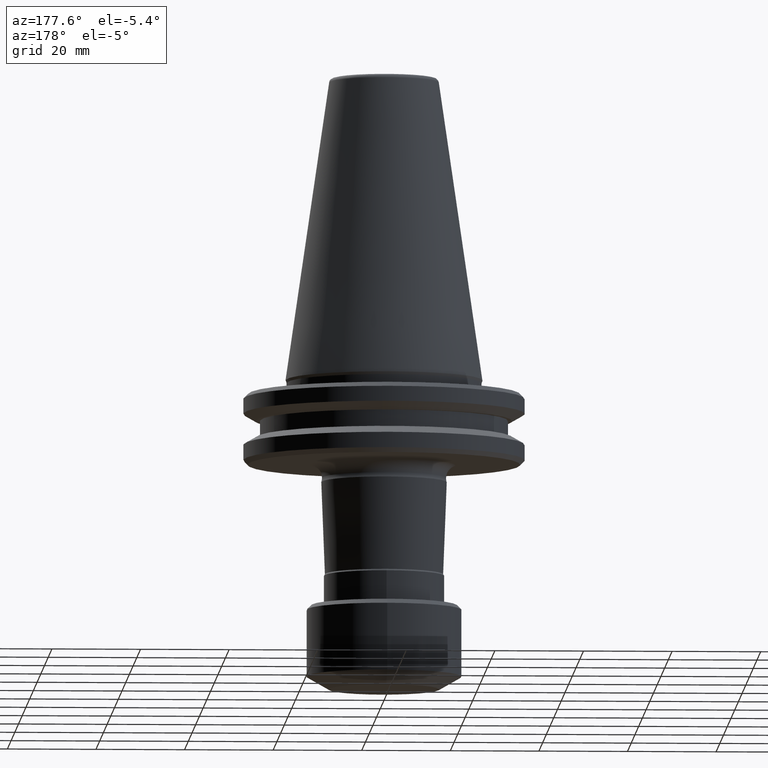
[diagram: clean part render]
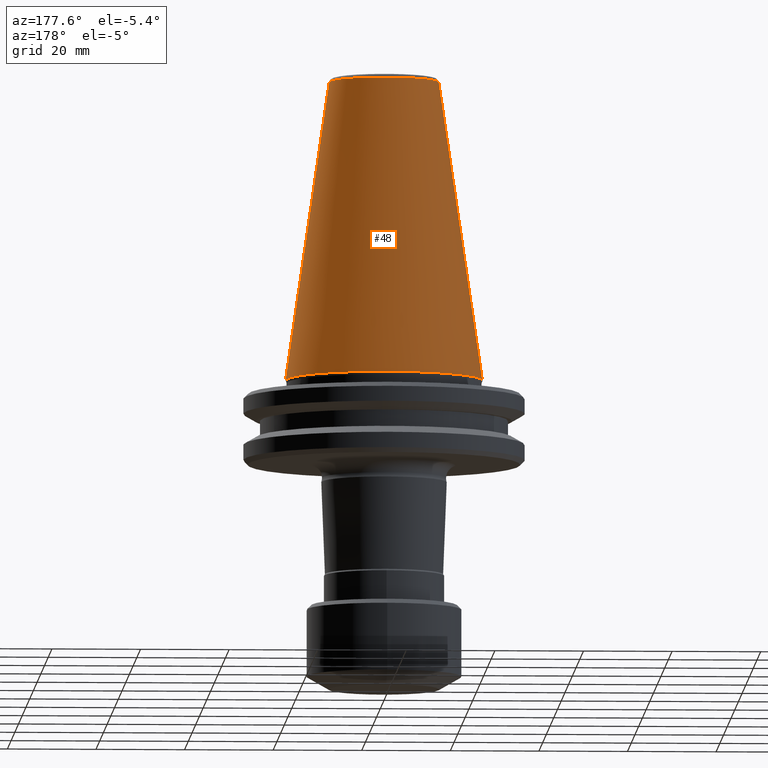
[diagram: same view with one face highlighted and labeled with its STEP entity id]
A machine part, auxiliary view. The second image highlights one B-rep face of the part: STEP entity #48.
In plain terms, the highlighted conical surface has half-angle 8.297 deg.
Its self-contained STEP definition (entity closure, byte-faithful):
#21 = ORIENTED_EDGE ( 'NONE', *, *, #473, .F. ) ;
#48 = ADVANCED_FACE ( 'NONE', ( #938 ), #1220, .T. ) ;
#101 = CARTESIAN_POINT ( 'NONE',  ( -22.22499999999526200, 0.0000000000000000000, 88.49999999999997200 ) ) ;
#102 = EDGE_CURVE ( 'NONE', #113, #907, #1208, .T. ) ;
#113 = VERTEX_POINT ( 'NONE', #267 ) ;
#126 = AXIS2_PLACEMENT_3D ( 'NONE', #280, #983, #392 ) ;
#130 = CARTESIAN_POINT ( 'NONE',  ( 22.22499999999526200, 0.0000000000000000000, 88.49999999999997200 ) ) ;
#141 = VECTOR ( 'NONE', #340, 1000.000000000000200 ) ;
#175 = ORIENTED_EDGE ( 'NONE', *, *, #504, .T. ) ;
#182 = LINE ( 'NONE', #1209, #270 ) ;
#260 = CIRCLE ( 'NONE', #126, 12.37469540291700900 ) ;
#267 = CARTESIAN_POINT ( 'NONE',  ( -22.22499999999526200, 2.721777511104412200E-015, 88.49999999999997200 ) ) ;
#270 = VECTOR ( 'NONE', #1029, 1000.000000000000200 ) ;
#280 = CARTESIAN_POINT ( 'NONE',  ( 0.0000000000000000000, 0.0000000000000000000, 156.0443082268837400 ) ) ;
#284 = DIRECTION ( 'NONE',  ( -1.000000000000000000, 0.0000000000000000000, 0.0000000000000000000 ) ) ;
#286 = CARTESIAN_POINT ( 'NONE',  ( 12.37469540291701100, 2.118620311332495400E-015, 156.0443082268837400 ) ) ;
#319 = AXIS2_PLACEMENT_3D ( 'NONE', #636, #1082, #1265 ) ;
#340 = DIRECTION ( 'NONE',  ( -0.1443082268835096400, 0.0000000000000000000, -0.9895327865481453600 ) ) ;
#392 = DIRECTION ( 'NONE',  ( -1.000000000000000000, 0.0000000000000000000, 0.0000000000000000000 ) ) ;
#396 = CARTESIAN_POINT ( 'NONE',  ( 0.0000000000000000000, 0.0000000000000000000, 88.49999999999997200 ) ) ;
#414 = ORIENTED_EDGE ( 'NONE', *, *, #1028, .T. ) ;
#421 = CARTESIAN_POINT ( 'NONE',  ( -12.37469540291700900, 0.0000000000000000000, 156.0443082268837400 ) ) ;
#446 = VERTEX_POINT ( 'NONE', #286 ) ;
#473 = EDGE_CURVE ( 'NONE', #587, #113, #693, .T. ) ;
#500 = EDGE_LOOP ( 'NONE', ( #414, #175, #887, #21 ) ) ;
#504 = EDGE_CURVE ( 'NONE', #446, #907, #182, .T. ) ;
#587 = VERTEX_POINT ( 'NONE', #421 ) ;
#636 = CARTESIAN_POINT ( 'NONE',  ( 0.0000000000000000000, 0.0000000000000000000, 88.49999999999997200 ) ) ;
#693 = LINE ( 'NONE', #101, #141 ) ;
#887 = ORIENTED_EDGE ( 'NONE', *, *, #102, .F. ) ;
#907 = VERTEX_POINT ( 'NONE', #130 ) ;
#938 = FACE_OUTER_BOUND ( 'NONE', #500, .T. ) ;
#983 = DIRECTION ( 'NONE',  ( -0.0000000000000000000, -0.0000000000000000000, -1.000000000000000000 ) ) ;
#989 = DIRECTION ( 'NONE',  ( -0.0000000000000000000, -0.0000000000000000000, -1.000000000000000000 ) ) ;
#1028 = EDGE_CURVE ( 'NONE', #587, #446, #260, .T. ) ;
#1029 = DIRECTION ( 'NONE',  ( 0.1443082268835096400, 1.767266081435201000E-017, -0.9895327865481453600 ) ) ;
#1082 = DIRECTION ( 'NONE',  ( -0.0000000000000000000, -0.0000000000000000000, -1.000000000000000000 ) ) ;
#1124 = AXIS2_PLACEMENT_3D ( 'NONE', #396, #989, #284 ) ;
#1208 = CIRCLE ( 'NONE', #319, 22.22499999999526200 ) ;
#1209 = CARTESIAN_POINT ( 'NONE',  ( 22.22499999999526200, 2.721777511104412200E-015, 88.49999999999997200 ) ) ;
#1220 = CONICAL_SURFACE ( 'NONE', #1124, 22.22499999999526200, 0.1448138461595619400 ) ;
#1265 = DIRECTION ( 'NONE',  ( -1.000000000000000000, 0.0000000000000000000, 0.0000000000000000000 ) ) ;